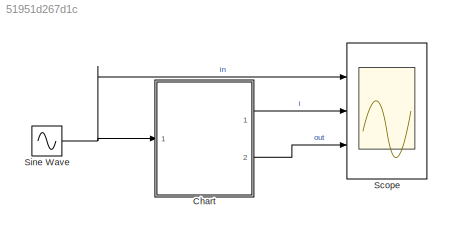
MODEL slx_51951d267d1c
KIND model
CONFIG AbsTol = auto
CONFIG EnableMultiTasking = off
CONFIG FixedStep = 0.01
CONFIG MaxStep = auto
CONFIG MinStep = auto
CONFIG RelTol = 1e-3
CONFIG SampleTimeConstraint = Unconstrained
CONFIG Solver = FixedStepDiscrete
CONFIG SolverName = FixedStepDiscrete
CONFIG StartTime = 0.0
CONFIG StopTime = 10.0
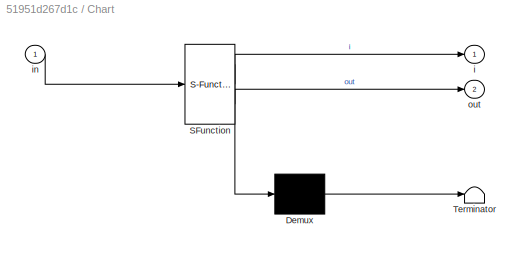
BLOCK [SubSystem] Chart
  ErrorFcn = Stateflow.Translate.translate
  PermitHierarchicalResolution = ExplicitOnly
  Ports = [1, 2]
  RequestExecContextInheritance = off
  SFBlockType = Chart
  TreatAsAtomicUnit = on
BLOCK [Demux] Chart/ Demux 
  Outputs = 1
  Ports = [1, 1]
BLOCK [S-Function] Chart/ SFunction 
  EnableBusSupport = on
  FunctionName = sf_sfun
  PortCounts = [1 3]
  Ports = [1, 3]
  SFcnIsStateOwnerBlock = off
  SFunctionDeploymentMode = off
  Tag = Stateflow S-Function SuperState 3
BLOCK [Terminator] Chart/ Terminator 
BLOCK [Outport] Chart/i
  IconDisplay = Port number
BLOCK [Inport] Chart/in
  IconDisplay = Port number
BLOCK [Outport] Chart/out
  IconDisplay = Port number
  Port = 2
BLOCK [Scope] Scope
  Floating = off
  NumInputPorts = 3
  Ports = [3]
  ScopeSpecificationString = Simulink.scopes.TimeScopeBlockCfg('CurrentConfiguration', extmgr.ConfigurationSet(extmgr.Configuration('Core','General UI',true),extmgr.Configuration('Core','Source UI',true),extmgr.Configuration('Sources','WiredSimulink',true),extmgr.Configuration('Visuals','Time Domain',true,'SerializedDisplays',{struct('MinYLimReal','-2.49999','MaxYLimReal','2.5','YLabelReal','','MinYLimMag','0.00000','MaxYLimM...<+2725ch>
BLOCK [Sin] Sine Wave
  Amplitude = 2
  Ports = [0, 1]
  SampleTime = 0
LINE Chart:1 -> Scope:2
LINE Chart:2 -> Scope:3
NET Sine Wave:1 -> Chart:1, Scope:1
note: NET lines group one-source signal fan-out (src -> all destinations, sorted); 1:1 wires keep LINE
CHART Chart states=7 transitions=11
  STATE_LABEL 'off\nen: out=0;'
  STATE_LABEL 'def\nen: i=0;'
  STATE_LABEL 'before_switch_\nduring: i=i+1;'
  STATE_LABEL '[in<0]'
  STATE_LABEL '[in>0]'
  STATE_LABEL 'def\nen: i=0;'
  STATE_LABEL 'before_switch_\nduring: i=i+1;'
  STATE_LABEL 'on\nen: out=1;'
  STATE_LABEL 'def\nen: i=0;'
  STATE_LABEL 'before_switch_\nduring: i=i+1;'
  STATE_LABEL '[i>=40]'
  STATE_LABEL '[in>0]'
  STATE_LABEL '[in<0]'
  STATE_LABEL 'def\nen: i=0;'
  STATE_LABEL 'before_switch_\nduring: i=i+1;'
  STATE_LABEL 'subchart'
